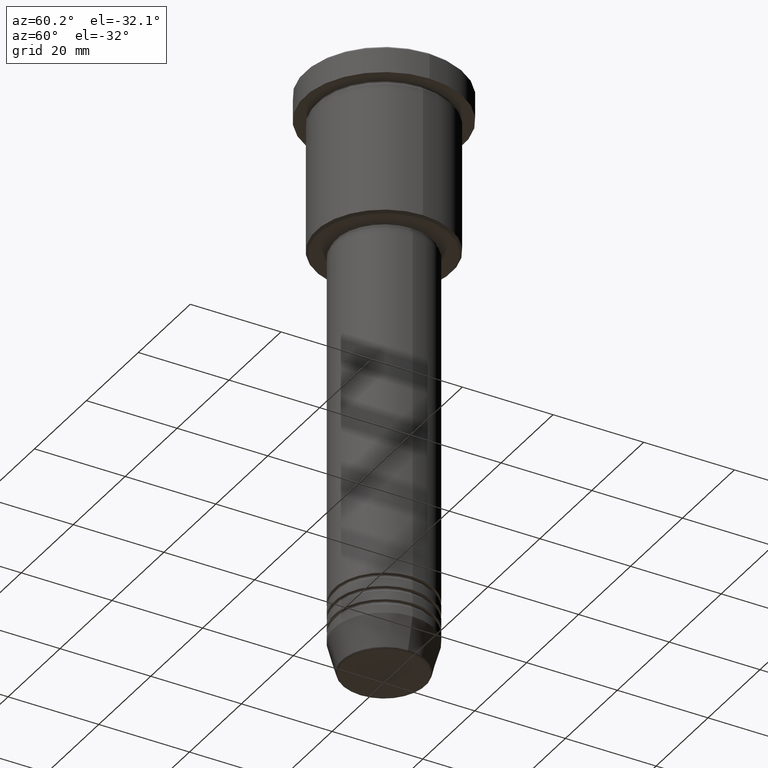
[diagram: clean part render]
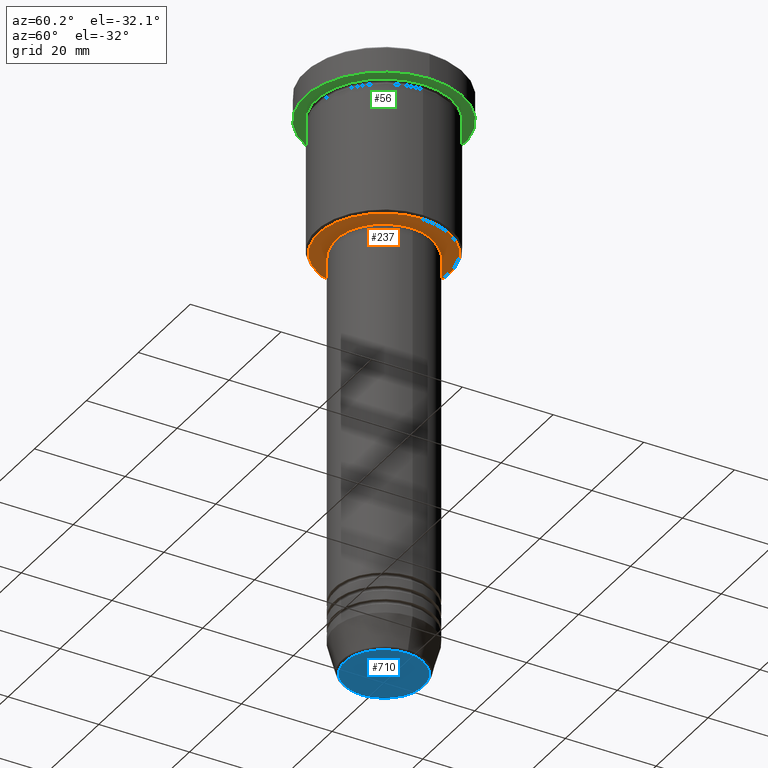
[diagram: same view with three faces highlighted in distinct colors, each labeled with its STEP entity id]
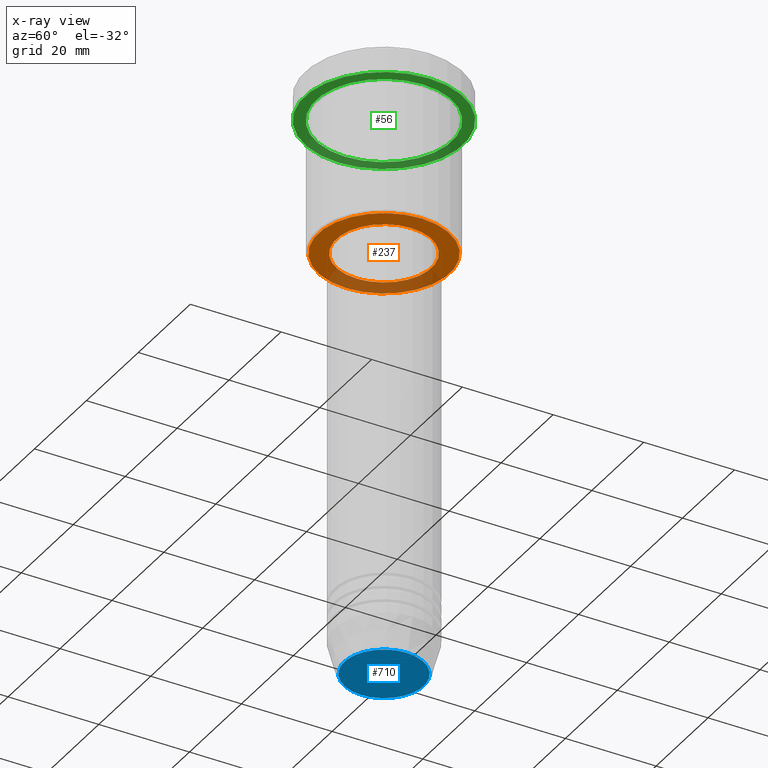
[diagram: x-ray of the same camera — body ghosted, the three highlighted faces saturated]
A machine part, auxiliary view with three faces highlighted in distinct colors.
The next image is the same camera in x-ray (body ghosted, the three faces saturated) — at least one of them is partly hidden behind the body in this view.
Their STEP definitions:

[orange] entity #237 — the highlighted planar face has unit normal (0, 0, -1).
#8 = DIRECTION ( 'NONE',  ( -1.000000000000000000, 0.000000000000000000, -0.000000000000000000 ) ) ;
#28 = VERTEX_POINT ( 'NONE', #808 ) ;
#36 = EDGE_LOOP ( 'NONE', ( #638, #881 ) ) ;
#59 = CARTESIAN_POINT ( 'NONE',  ( -14.49999999999996980, 1.806354028742344224E-15, -35.99999999999999289 ) ) ;
#87 = DIRECTION ( 'NONE',  ( -0.000000000000000000, -0.000000000000000000, 1.000000000000000000 ) ) ;
#90 = EDGE_LOOP ( 'NONE', ( #1123, #128 ) ) ;
#103 = DIRECTION ( 'NONE',  ( 0.000000000000000000, 0.000000000000000000, -1.000000000000000000 ) ) ;
#128 = ORIENTED_EDGE ( 'NONE', *, *, #1114, .T. ) ;
#135 = EDGE_CURVE ( 'NONE', #28, #567, #990, .T. ) ;
#152 = DIRECTION ( 'NONE',  ( 0.000000000000000000, 0.000000000000000000, -1.000000000000000000 ) ) ;
#159 = CARTESIAN_POINT ( 'NONE',  ( 0.000000000000000000, 0.000000000000000000, -35.99999999999999289 ) ) ;
#177 = PLANE ( 'NONE',  #351 ) ;
#221 = AXIS2_PLACEMENT_3D ( 'NONE', #454, #103, #477 ) ;
#237 = ADVANCED_FACE ( 'NONE', ( #281, #829 ), #177, .T. ) ;
#242 = AXIS2_PLACEMENT_3D ( 'NONE', #159, #616, #1080 ) ;
#261 = EDGE_CURVE ( 'NONE', #385, #338, #1032, .T. ) ;
#270 = CARTESIAN_POINT ( 'NONE',  ( 0.000000000000000000, 15.00000000000000000, -35.99999999999999289 ) ) ;
#275 = CARTESIAN_POINT ( 'NONE',  ( 0.000000000000000000, 0.000000000000000000, -35.99999999999999289 ) ) ;
#281 = FACE_OUTER_BOUND ( 'NONE', #90, .T. ) ;
#287 = CIRCLE ( 'NONE', #571, 14.49999999999996980 ) ;
#338 = VERTEX_POINT ( 'NONE', #1145 ) ;
#351 = AXIS2_PLACEMENT_3D ( 'NONE', #270, #835, #8 ) ;
#385 = VERTEX_POINT ( 'NONE', #871 ) ;
#408 = CIRCLE ( 'NONE', #821, 10.49999999999999822 ) ;
#454 = CARTESIAN_POINT ( 'NONE',  ( 0.000000000000000000, 0.000000000000000000, -35.99999999999999289 ) ) ;
#477 = DIRECTION ( 'NONE',  ( -1.000000000000000000, 0.000000000000000000, 0.000000000000000000 ) ) ;
#567 = VERTEX_POINT ( 'NONE', #59 ) ;
#571 = AXIS2_PLACEMENT_3D ( 'NONE', #580, #152, #810 ) ;
#580 = CARTESIAN_POINT ( 'NONE',  ( 0.000000000000000000, 0.000000000000000000, -35.99999999999999289 ) ) ;
#616 = DIRECTION ( 'NONE',  ( -0.000000000000000000, -0.000000000000000000, 1.000000000000000000 ) ) ;
#638 = ORIENTED_EDGE ( 'NONE', *, *, #261, .T. ) ;
#790 = EDGE_CURVE ( 'NONE', #338, #385, #408, .T. ) ;
#808 = CARTESIAN_POINT ( 'NONE',  ( 14.49999999999996980, 0.000000000000000000, -35.99999999999999289 ) ) ;
#810 = DIRECTION ( 'NONE',  ( -1.000000000000000000, 0.000000000000000000, 0.000000000000000000 ) ) ;
#816 = DIRECTION ( 'NONE',  ( 1.000000000000000000, 0.000000000000000000, 0.000000000000000000 ) ) ;
#821 = AXIS2_PLACEMENT_3D ( 'NONE', #275, #87, #816 ) ;
#829 = FACE_BOUND ( 'NONE', #36, .T. ) ;
#835 = DIRECTION ( 'NONE',  ( 0.000000000000000000, 0.000000000000000000, -1.000000000000000000 ) ) ;
#871 = CARTESIAN_POINT ( 'NONE',  ( 10.49999999999999822, 0.000000000000000000, -35.99999999999999289 ) ) ;
#881 = ORIENTED_EDGE ( 'NONE', *, *, #790, .T. ) ;
#990 = CIRCLE ( 'NONE', #221, 14.49999999999996980 ) ;
#1032 = CIRCLE ( 'NONE', #242, 10.49999999999999822 ) ;
#1080 = DIRECTION ( 'NONE',  ( 1.000000000000000000, 0.000000000000000000, 0.000000000000000000 ) ) ;
#1114 = EDGE_CURVE ( 'NONE', #567, #28, #287, .T. ) ;
#1123 = ORIENTED_EDGE ( 'NONE', *, *, #135, .T. ) ;
#1145 = CARTESIAN_POINT ( 'NONE',  ( -10.49999999999999822, 1.285879139104720633E-15, -35.99999999999999289 ) ) ;

[blue] entity #710 — the highlighted planar face has unit normal (0, -0, 1).
#12 = AXIS2_PLACEMENT_3D ( 'NONE', #222, #502, #486 ) ;
#154 = PLANE ( 'NONE',  #995 ) ;
#222 = CARTESIAN_POINT ( 'NONE',  ( 0.000000000000000000, 0.000000000000000000, -131.0000000000000000 ) ) ;
#274 = VERTEX_POINT ( 'NONE', #413 ) ;
#298 = AXIS2_PLACEMENT_3D ( 'NONE', #1139, #581, #1146 ) ;
#335 = CARTESIAN_POINT ( 'NONE',  ( 0.000000000000000000, 0.000000000000000000, -131.0000000000000000 ) ) ;
#366 = ORIENTED_EDGE ( 'NONE', *, *, #435, .T. ) ;
#413 = CARTESIAN_POINT ( 'NONE',  ( 8.740692158992652949, 0.000000000000000000, -131.0000000000000000 ) ) ;
#414 = DIRECTION ( 'NONE',  ( 0.000000000000000000, -0.000000000000000000, 1.000000000000000000 ) ) ;
#435 = EDGE_CURVE ( 'NONE', #274, #933, #586, .T. ) ;
#480 = EDGE_CURVE ( 'NONE', #933, #274, #1154, .T. ) ;
#486 = DIRECTION ( 'NONE',  ( 1.000000000000000000, 0.000000000000000000, 0.000000000000000000 ) ) ;
#502 = DIRECTION ( 'NONE',  ( 0.000000000000000000, 0.000000000000000000, -1.000000000000000000 ) ) ;
#511 = DIRECTION ( 'NONE',  ( 1.000000000000000000, 0.000000000000000000, 0.000000000000000000 ) ) ;
#581 = DIRECTION ( 'NONE',  ( 0.000000000000000000, 0.000000000000000000, -1.000000000000000000 ) ) ;
#586 = CIRCLE ( 'NONE', #12, 8.740692158992652949 ) ;
#630 = ORIENTED_EDGE ( 'NONE', *, *, #480, .T. ) ;
#710 = ADVANCED_FACE ( 'NONE', ( #813 ), #154, .F. ) ;
#773 = CARTESIAN_POINT ( 'NONE',  ( -8.740692158992652949, 1.099999016768739259E-15, -131.0000000000000000 ) ) ;
#813 = FACE_OUTER_BOUND ( 'NONE', #1016, .T. ) ;
#933 = VERTEX_POINT ( 'NONE', #773 ) ;
#995 = AXIS2_PLACEMENT_3D ( 'NONE', #335, #414, #511 ) ;
#1016 = EDGE_LOOP ( 'NONE', ( #366, #630 ) ) ;
#1139 = CARTESIAN_POINT ( 'NONE',  ( 0.000000000000000000, 0.000000000000000000, -131.0000000000000000 ) ) ;
#1146 = DIRECTION ( 'NONE',  ( 1.000000000000000000, 0.000000000000000000, 0.000000000000000000 ) ) ;
#1154 = CIRCLE ( 'NONE', #298, 8.740692158992652949 ) ;

[green] entity #56 — the highlighted planar face has unit normal (0, 0, -1).
#52 = AXIS2_PLACEMENT_3D ( 'NONE', #464, #1083, #605 ) ;
#56 = ADVANCED_FACE ( 'NONE', ( #863, #828 ), #260, .T. ) ;
#62 = DIRECTION ( 'NONE',  ( -0.000000000000000000, -0.000000000000000000, 1.000000000000000000 ) ) ;
#77 = CARTESIAN_POINT ( 'NONE',  ( 0.000000000000000000, 17.50000000000000000, -5.999999999999995559 ) ) ;
#104 = ORIENTED_EDGE ( 'NONE', *, *, #683, .T. ) ;
#116 = VERTEX_POINT ( 'NONE', #626 ) ;
#186 = DIRECTION ( 'NONE',  ( -1.000000000000000000, 0.000000000000000000, -0.000000000000000000 ) ) ;
#233 = ORIENTED_EDGE ( 'NONE', *, *, #303, .F. ) ;
#260 = PLANE ( 'NONE',  #920 ) ;
#303 = EDGE_CURVE ( 'NONE', #542, #577, #751, .T. ) ;
#329 = CIRCLE ( 'NONE', #774, 15.00000000000000000 ) ;
#361 = ORIENTED_EDGE ( 'NONE', *, *, #578, .T. ) ;
#464 = CARTESIAN_POINT ( 'NONE',  ( 0.000000000000000000, 0.000000000000000000, -5.999999999999995559 ) ) ;
#510 = CARTESIAN_POINT ( 'NONE',  ( 0.000000000000000000, 0.000000000000000000, -5.999999999999995559 ) ) ;
#517 = CARTESIAN_POINT ( 'NONE',  ( 17.50000000000000000, 0.000000000000000000, -5.999999999999995559 ) ) ;
#542 = VERTEX_POINT ( 'NONE', #517 ) ;
#549 = CARTESIAN_POINT ( 'NONE',  ( -17.50000000000000000, 2.143131898507868248E-15, -5.999999999999995559 ) ) ;
#558 = CIRCLE ( 'NONE', #52, 15.00000000000000000 ) ;
#577 = VERTEX_POINT ( 'NONE', #549 ) ;
#578 = EDGE_CURVE ( 'NONE', #116, #801, #558, .T. ) ;
#601 = DIRECTION ( 'NONE',  ( 1.000000000000000000, 0.000000000000000000, 0.000000000000000000 ) ) ;
#605 = DIRECTION ( 'NONE',  ( -1.000000000000000000, 0.000000000000000000, 0.000000000000000000 ) ) ;
#626 = CARTESIAN_POINT ( 'NONE',  ( -15.00000000000000000, 0.000000000000000000, -5.999999999999994671 ) ) ;
#683 = EDGE_CURVE ( 'NONE', #801, #116, #329, .T. ) ;
#696 = CARTESIAN_POINT ( 'NONE',  ( 0.000000000000000000, 0.000000000000000000, -5.999999999999995559 ) ) ;
#717 = AXIS2_PLACEMENT_3D ( 'NONE', #510, #62, #1072 ) ;
#719 = CIRCLE ( 'NONE', #926, 17.50000000000000000 ) ;
#723 = CARTESIAN_POINT ( 'NONE',  ( 15.00000000000000000, 1.836970198721029589E-15, -5.999999999999994671 ) ) ;
#741 = EDGE_LOOP ( 'NONE', ( #233, #1023 ) ) ;
#743 = EDGE_CURVE ( 'NONE', #577, #542, #719, .T. ) ;
#751 = CIRCLE ( 'NONE', #717, 17.50000000000000000 ) ;
#774 = AXIS2_PLACEMENT_3D ( 'NONE', #1171, #799, #1147 ) ;
#799 = DIRECTION ( 'NONE',  ( -0.000000000000000000, -0.000000000000000000, 1.000000000000000000 ) ) ;
#801 = VERTEX_POINT ( 'NONE', #723 ) ;
#809 = DIRECTION ( 'NONE',  ( 0.000000000000000000, 0.000000000000000000, -1.000000000000000000 ) ) ;
#828 = FACE_OUTER_BOUND ( 'NONE', #741, .T. ) ;
#863 = FACE_BOUND ( 'NONE', #1115, .T. ) ;
#920 = AXIS2_PLACEMENT_3D ( 'NONE', #77, #809, #186 ) ;
#926 = AXIS2_PLACEMENT_3D ( 'NONE', #696, #1081, #601 ) ;
#1023 = ORIENTED_EDGE ( 'NONE', *, *, #743, .F. ) ;
#1072 = DIRECTION ( 'NONE',  ( 1.000000000000000000, 0.000000000000000000, 0.000000000000000000 ) ) ;
#1081 = DIRECTION ( 'NONE',  ( -0.000000000000000000, -0.000000000000000000, 1.000000000000000000 ) ) ;
#1083 = DIRECTION ( 'NONE',  ( -0.000000000000000000, -0.000000000000000000, 1.000000000000000000 ) ) ;
#1115 = EDGE_LOOP ( 'NONE', ( #361, #104 ) ) ;
#1147 = DIRECTION ( 'NONE',  ( -1.000000000000000000, 0.000000000000000000, 0.000000000000000000 ) ) ;
#1171 = CARTESIAN_POINT ( 'NONE',  ( 0.000000000000000000, 0.000000000000000000, -5.999999999999995559 ) ) ;